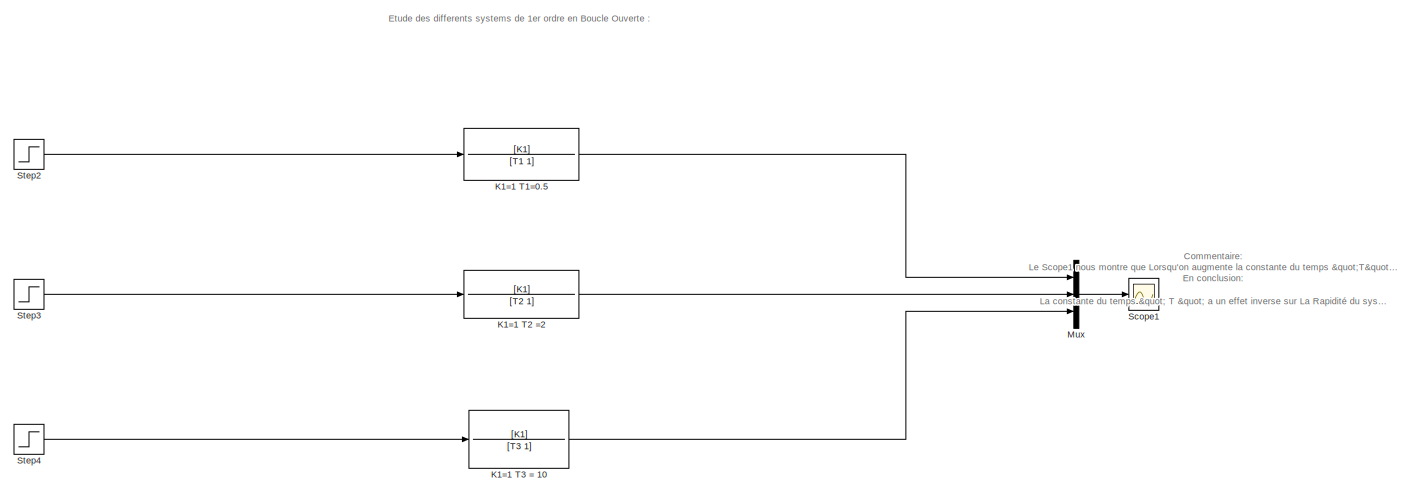
[diagram: root canvas - part 1/2, full width, top band]
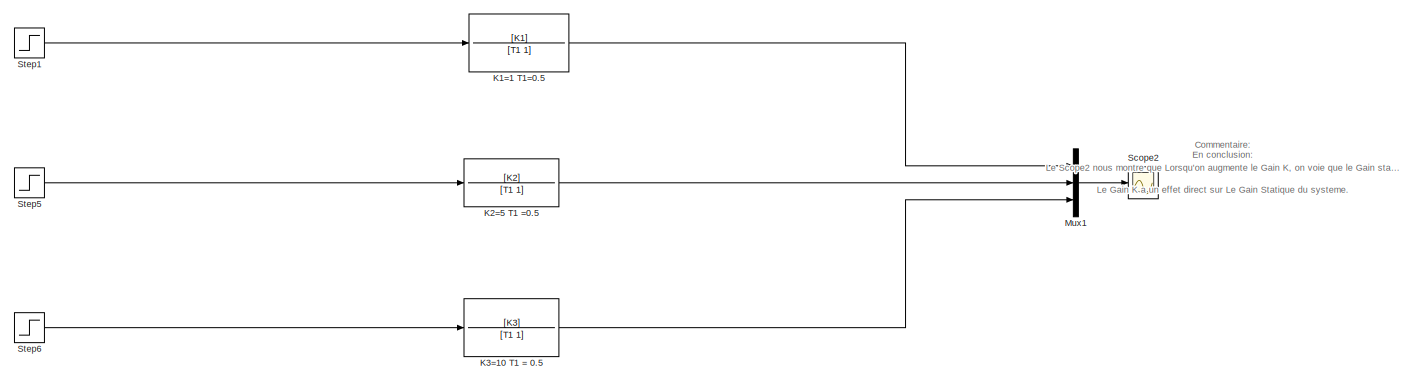
[diagram: root canvas - part 2/2, full width, bottom band]
MODEL slx_9be4597fb412
KIND model
CONFIG AbsTol = auto
CONFIG EnableMultiTasking = off
CONFIG FixedStep = auto
CONFIG MaxStep = auto
CONFIG MinStep = auto
CONFIG RelTol = 1e-3
CONFIG SampleTimeConstraint = Unconstrained
CONFIG Solver = VariableStepAuto
CONFIG SolverName = VariableStepAuto
CONFIG StartTime = 0.0
CONFIG StopTime = 100
BLOCK [TransferFcn] K1=1 T1=0.5
  Denominator = [T1 1]
  Numerator = [K1]
BLOCK [TransferFcn] K1=1 T1=0.5 
  Denominator = [T1 1]
  Numerator = [K1]
BLOCK [TransferFcn] K1=1 T2 =2 
  Denominator = [T2 1]
  Numerator = [K1]
BLOCK [TransferFcn] K1=1 T3 = 10 
  Denominator = [T3 1]
  Numerator = [K1]
BLOCK [TransferFcn] K2=5 T1 =0.5 
  Denominator = [T1 1]
  Numerator = [K2]
BLOCK [TransferFcn] K3=10 T1 = 0.5
  Denominator = [T1 1]
  Numerator = [K3]
BLOCK [Mux] Mux
  DisplayOption = bar
  Inputs = 3
  Ports = [3, 1]
BLOCK [Mux] Mux1
  DisplayOption = bar
  Inputs = 3
  Ports = [3, 1]
BLOCK [Scope] Scope1 
  NumInputPorts = 1
  Ports = [1]
  ScopeSpecificationString = Simulink.scopes.TimeScopeBlockCfg('CurrentConfiguration', extmgr.ConfigurationSet(extmgr.Configuration('Core','General UI',true),extmgr.Configuration('Core','Source UI',true),extmgr.Configuration('Sources','WiredSimulink',true),extmgr.Configuration('Visuals','Time Domain',true,'SerializedDisplays',{struct('MinYLimReal','-0.125','MaxYLimReal','1.125','YLabelReal','','MinYLimMag','0.00000','MaxYLimM...<+1400ch>
BLOCK [Scope] Scope2 
  NumInputPorts = 1
  Ports = [1]
  ScopeSpecificationString = Simulink.scopes.TimeScopeBlockCfg('CurrentConfiguration', extmgr.ConfigurationSet(extmgr.Configuration('Core','General UI',true),extmgr.Configuration('Core','Source UI',true),extmgr.Configuration('Sources','WiredSimulink',true,'DataLoggingVariableName','ScopeData1'),extmgr.Configuration('Visuals','Time Domain',true,'SerializedDisplays',{struct('MinYLimReal','-1.2499','MaxYLimReal','11.24911','YLab...<+1456ch>
BLOCK [Step] Step1
  SampleTime = 0
  Time = 0
BLOCK [Step] Step2
  SampleTime = 0
  Time = 0
BLOCK [Step] Step3
  SampleTime = 0
  Time = 0
BLOCK [Step] Step4
  SampleTime = 0
  Time = 0
BLOCK [Step] Step5
  SampleTime = 0
  Time = 0
BLOCK [Step] Step6
  SampleTime = 0
  Time = 0
ANNOTATION (root): Commentaire: Le Scope1 nous montre que Lorsqu'on augmente la constante du temps "T", on voie que La reponse de systeme diminue. En conclusion: La constante du temps " T " a un effet inverse sur La Rapidité du systeme.
ANNOTATION (root): Commentaire: Le Scope2 nous montre que Lorsqu'on augmente le Gain K, on voie que le Gain statique de la reponse du systeme augmente. En conclusion: Le Gain K a un effet direct sur Le Gain Statique du systeme.
ANNOTATION (root): Etude des differents systems de 1er ordre en Boucle Ouverte :
LINE K1=1 T1=0.5 :1 -> Mux:1
LINE K1=1 T1=0.5:1 -> Mux1:1
LINE K1=1 T2 =2 :1 -> Mux:2
LINE K1=1 T3 = 10 :1 -> Mux:3
LINE K2=5 T1 =0.5 :1 -> Mux1:2
LINE K3=10 T1 = 0.5:1 -> Mux1:3
LINE Mux1:1 -> Scope2 :1
LINE Mux:1 -> Scope1 :1
LINE Step1:1 -> K1=1 T1=0.5:1
LINE Step2:1 -> K1=1 T1=0.5 :1
LINE Step3:1 -> K1=1 T2 =2 :1
LINE Step4:1 -> K1=1 T3 = 10 :1
LINE Step5:1 -> K2=5 T1 =0.5 :1
LINE Step6:1 -> K3=10 T1 = 0.5:1
